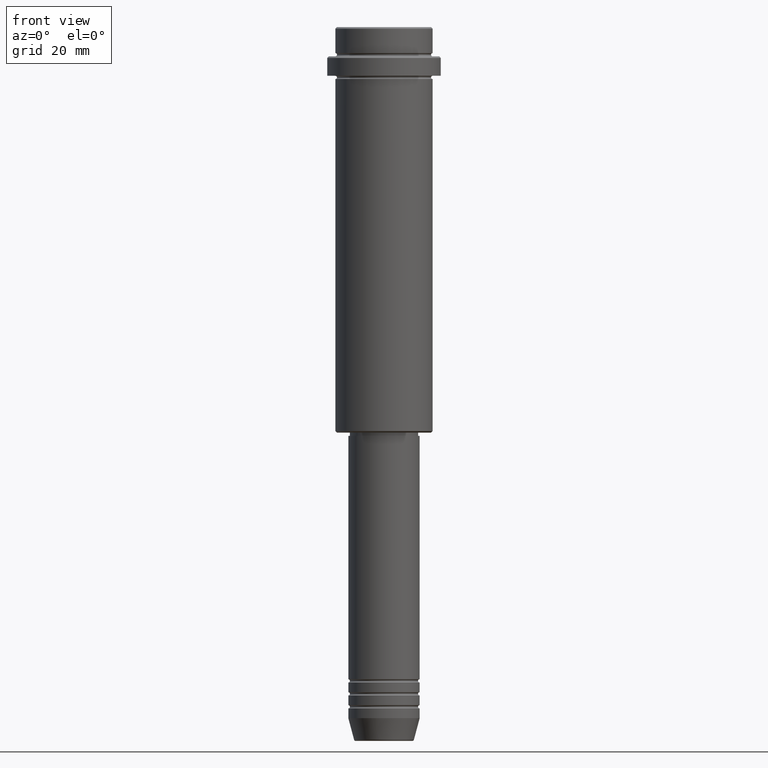
[diagram: clean part render]
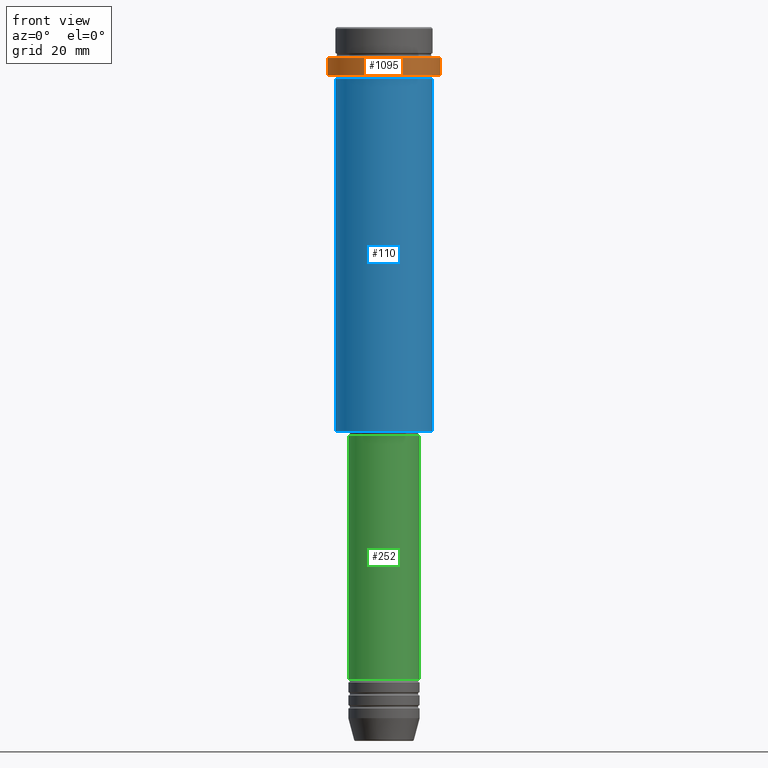
[diagram: same view with three faces highlighted in distinct colors, each labeled with its STEP entity id]
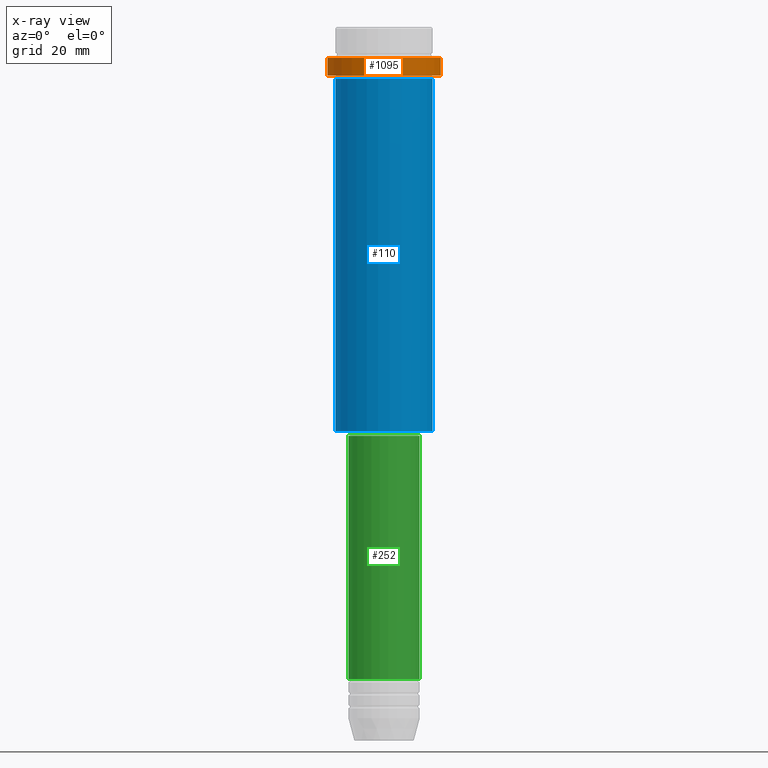
[diagram: x-ray of the same camera — body ghosted, the three highlighted faces saturated]
A machine part, front view with three faces highlighted in distinct colors.
The next image is the same camera in x-ray (body ghosted, the three faces saturated) — at least one of them is partly hidden behind the body in this view.
Their STEP definitions:

[orange] entity #1095 — the highlighted cylindrical surface (partial cylindrical patch) has radius 17.5 mm, axis along (-0, -0, 1).
#15 = VECTOR ( 'NONE', #1287, 1000.000000000000000 ) ;
#24 = EDGE_CURVE ( 'NONE', #662, #184, #1008, .T. ) ;
#44 = CARTESIAN_POINT ( 'NONE',  ( 17.50000000000000000, 0.000000000000000000, 0.000000000000000000 ) ) ;
#74 = CARTESIAN_POINT ( 'NONE',  ( 17.50000000000000000, 0.000000000000000000, -9.500000000000028422 ) ) ;
#97 = VERTEX_POINT ( 'NONE', #1066 ) ;
#157 = ORIENTED_EDGE ( 'NONE', *, *, #24, .T. ) ;
#178 = DIRECTION ( 'NONE',  ( 1.000000000000000000, 0.000000000000000000, 0.000000000000000000 ) ) ;
#184 = VERTEX_POINT ( 'NONE', #264 ) ;
#208 = CARTESIAN_POINT ( 'NONE',  ( 0.000000000000000000, 0.000000000000000000, -9.500000000000028422 ) ) ;
#232 = LINE ( 'NONE', #44, #461 ) ;
#264 = CARTESIAN_POINT ( 'NONE',  ( -17.50000000000000000, 2.143131898507868248E-15, -9.500000000000028422 ) ) ;
#283 = ORIENTED_EDGE ( 'NONE', *, *, #715, .T. ) ;
#365 = EDGE_CURVE ( 'NONE', #944, #184, #657, .T. ) ;
#424 = DIRECTION ( 'NONE',  ( -0.000000000000000000, -0.000000000000000000, 1.000000000000000000 ) ) ;
#461 = VECTOR ( 'NONE', #690, 1000.000000000000000 ) ;
#514 = CARTESIAN_POINT ( 'NONE',  ( -17.50000000000000000, 2.143131898507868248E-15, -15.00000000000000178 ) ) ;
#521 = CARTESIAN_POINT ( 'NONE',  ( -17.50000000000000000, 2.143131898507868248E-15, 0.000000000000000000 ) ) ;
#550 = DIRECTION ( 'NONE',  ( 0.000000000000000000, 0.000000000000000000, -1.000000000000000000 ) ) ;
#616 = ORIENTED_EDGE ( 'NONE', *, *, #875, .T. ) ;
#657 = LINE ( 'NONE', #521, #15 ) ;
#662 = VERTEX_POINT ( 'NONE', #74 ) ;
#690 = DIRECTION ( 'NONE',  ( -0.000000000000000000, -0.000000000000000000, 1.000000000000000000 ) ) ;
#696 = EDGE_LOOP ( 'NONE', ( #1167, #283, #616, #157 ) ) ;
#715 = EDGE_CURVE ( 'NONE', #944, #97, #903, .T. ) ;
#725 = FACE_OUTER_BOUND ( 'NONE', #696, .T. ) ;
#742 = CARTESIAN_POINT ( 'NONE',  ( 0.000000000000000000, 0.000000000000000000, 0.000000000000000000 ) ) ;
#834 = DIRECTION ( 'NONE',  ( 1.000000000000000000, 0.000000000000000000, 0.000000000000000000 ) ) ;
#875 = EDGE_CURVE ( 'NONE', #97, #662, #232, .T. ) ;
#903 = CIRCLE ( 'NONE', #1239, 17.50000000000000000 ) ;
#944 = VERTEX_POINT ( 'NONE', #514 ) ;
#1008 = CIRCLE ( 'NONE', #1408, 17.50000000000000000 ) ;
#1066 = CARTESIAN_POINT ( 'NONE',  ( 17.50000000000000000, 0.000000000000000000, -15.00000000000000178 ) ) ;
#1078 = DIRECTION ( 'NONE',  ( -0.000000000000000000, -0.000000000000000000, 1.000000000000000000 ) ) ;
#1095 = ADVANCED_FACE ( 'NONE', ( #725 ), #1272, .T. ) ;
#1167 = ORIENTED_EDGE ( 'NONE', *, *, #365, .F. ) ;
#1239 = AXIS2_PLACEMENT_3D ( 'NONE', #1399, #424, #834 ) ;
#1240 = AXIS2_PLACEMENT_3D ( 'NONE', #742, #1078, #178 ) ;
#1272 = CYLINDRICAL_SURFACE ( 'NONE', #1240, 17.50000000000000000 ) ;
#1287 = DIRECTION ( 'NONE',  ( -0.000000000000000000, -0.000000000000000000, 1.000000000000000000 ) ) ;
#1399 = CARTESIAN_POINT ( 'NONE',  ( 0.000000000000000000, 0.000000000000000000, -15.00000000000000178 ) ) ;
#1408 = AXIS2_PLACEMENT_3D ( 'NONE', #208, #550, #1416 ) ;
#1416 = DIRECTION ( 'NONE',  ( 1.000000000000000000, 0.000000000000000000, 0.000000000000000000 ) ) ;

[blue] entity #110 — the highlighted cylindrical surface (partial cylindrical patch) has radius 15 mm, axis along (-0, -0, 1).
#69 = EDGE_CURVE ( 'NONE', #987, #939, #1098, .T. ) ;
#110 = ADVANCED_FACE ( 'NONE', ( #701 ), #1107, .T. ) ;
#112 = CARTESIAN_POINT ( 'NONE',  ( 15.00000000000000000, 0.000000000000000000, 0.000000000000000000 ) ) ;
#126 = DIRECTION ( 'NONE',  ( -0.000000000000000000, -0.000000000000000000, 1.000000000000000000 ) ) ;
#127 = CARTESIAN_POINT ( 'NONE',  ( 0.000000000000000000, 0.000000000000000000, -16.00000000000000000 ) ) ;
#188 = VERTEX_POINT ( 'NONE', #401 ) ;
#195 = AXIS2_PLACEMENT_3D ( 'NONE', #564, #1220, #1108 ) ;
#212 = ORIENTED_EDGE ( 'NONE', *, *, #1404, .F. ) ;
#226 = CARTESIAN_POINT ( 'NONE',  ( 0.000000000000000000, 0.000000000000000000, 0.000000000000000000 ) ) ;
#233 = LINE ( 'NONE', #112, #1163 ) ;
#247 = CARTESIAN_POINT ( 'NONE',  ( 15.00000000000000178, 0.000000000000000000, -16.00000000000000000 ) ) ;
#248 = DIRECTION ( 'NONE',  ( -0.000000000000000000, -0.000000000000000000, 1.000000000000000000 ) ) ;
#270 = EDGE_CURVE ( 'NONE', #939, #836, #233, .T. ) ;
#294 = ORIENTED_EDGE ( 'NONE', *, *, #69, .T. ) ;
#323 = LINE ( 'NONE', #558, #1390 ) ;
#359 = ORIENTED_EDGE ( 'NONE', *, *, #270, .T. ) ;
#401 = CARTESIAN_POINT ( 'NONE',  ( -15.00000000000000355, 1.836970198721029983E-15, -16.00000000000000000 ) ) ;
#558 = CARTESIAN_POINT ( 'NONE',  ( -15.00000000000000000, 1.836970198721029589E-15, 0.000000000000000000 ) ) ;
#564 = CARTESIAN_POINT ( 'NONE',  ( 0.000000000000000000, 0.000000000000000000, -124.4999999999999574 ) ) ;
#590 = DIRECTION ( 'NONE',  ( 1.000000000000000000, 0.000000000000000000, 0.000000000000000000 ) ) ;
#681 = DIRECTION ( 'NONE',  ( -0.000000000000000000, -0.000000000000000000, 1.000000000000000000 ) ) ;
#701 = FACE_OUTER_BOUND ( 'NONE', #1065, .T. ) ;
#836 = VERTEX_POINT ( 'NONE', #247 ) ;
#929 = CARTESIAN_POINT ( 'NONE',  ( -15.00000000000000000, 1.836970198721029589E-15, -124.4999999999999574 ) ) ;
#939 = VERTEX_POINT ( 'NONE', #1366 ) ;
#987 = VERTEX_POINT ( 'NONE', #929 ) ;
#997 = AXIS2_PLACEMENT_3D ( 'NONE', #127, #248, #1328 ) ;
#1009 = AXIS2_PLACEMENT_3D ( 'NONE', #226, #1336, #590 ) ;
#1037 = CIRCLE ( 'NONE', #997, 15.00000000000000178 ) ;
#1065 = EDGE_LOOP ( 'NONE', ( #1097, #294, #359, #212 ) ) ;
#1097 = ORIENTED_EDGE ( 'NONE', *, *, #1309, .F. ) ;
#1098 = CIRCLE ( 'NONE', #195, 15.00000000000000000 ) ;
#1107 = CYLINDRICAL_SURFACE ( 'NONE', #1009, 15.00000000000000000 ) ;
#1108 = DIRECTION ( 'NONE',  ( -1.000000000000000000, 0.000000000000000000, 0.000000000000000000 ) ) ;
#1163 = VECTOR ( 'NONE', #126, 1000.000000000000000 ) ;
#1220 = DIRECTION ( 'NONE',  ( -0.000000000000000000, -0.000000000000000000, 1.000000000000000000 ) ) ;
#1309 = EDGE_CURVE ( 'NONE', #987, #188, #323, .T. ) ;
#1328 = DIRECTION ( 'NONE',  ( 1.000000000000000000, 0.000000000000000000, 0.000000000000000000 ) ) ;
#1336 = DIRECTION ( 'NONE',  ( -0.000000000000000000, -0.000000000000000000, 1.000000000000000000 ) ) ;
#1366 = CARTESIAN_POINT ( 'NONE',  ( 15.00000000000000000, 0.000000000000000000, -124.4999999999999574 ) ) ;
#1390 = VECTOR ( 'NONE', #681, 1000.000000000000000 ) ;
#1404 = EDGE_CURVE ( 'NONE', #188, #836, #1037, .T. ) ;

[green] entity #252 — the highlighted cylindrical surface (edge-blend (fillet) strip) has radius 11 mm, axis along (-0, -0, 1).
#26 = CARTESIAN_POINT ( 'NONE',  ( 11.00000000000000000, 0.000000000000000000, -200.9999999999999147 ) ) ;
#55 = CIRCLE ( 'NONE', #992, 11.00000000000000000 ) ;
#61 = CARTESIAN_POINT ( 'NONE',  ( 0.000000000000000000, 0.000000000000000000, -200.9999999999999147 ) ) ;
#119 = VECTOR ( 'NONE', #1144, 1000.000000000000000 ) ;
#163 = DIRECTION ( 'NONE',  ( -0.000000000000000000, -0.000000000000000000, 1.000000000000000000 ) ) ;
#164 = AXIS2_PLACEMENT_3D ( 'NONE', #464, #1003, #329 ) ;
#224 = ORIENTED_EDGE ( 'NONE', *, *, #460, .F. ) ;
#244 = FACE_OUTER_BOUND ( 'NONE', #1299, .T. ) ;
#252 = ADVANCED_FACE ( 'NONE', ( #244 ), #574, .T. ) ;
#257 = CARTESIAN_POINT ( 'NONE',  ( -11.00000000000000000, 1.347111479062088405E-15, -200.9999999999999147 ) ) ;
#258 = EDGE_CURVE ( 'NONE', #1229, #380, #529, .T. ) ;
#291 = CARTESIAN_POINT ( 'NONE',  ( -11.00000000000000000, 1.347111479062088405E-15, 0.000000000000000000 ) ) ;
#316 = ORIENTED_EDGE ( 'NONE', *, *, #543, .T. ) ;
#329 = DIRECTION ( 'NONE',  ( 1.000000000000000000, 0.000000000000000000, 0.000000000000000000 ) ) ;
#380 = VERTEX_POINT ( 'NONE', #1380 ) ;
#398 = DIRECTION ( 'NONE',  ( 1.000000000000000000, 0.000000000000000000, 0.000000000000000000 ) ) ;
#434 = VECTOR ( 'NONE', #163, 1000.000000000000000 ) ;
#460 = EDGE_CURVE ( 'NONE', #542, #1229, #1048, .T. ) ;
#464 = CARTESIAN_POINT ( 'NONE',  ( 0.000000000000000000, 0.000000000000000000, 0.000000000000000000 ) ) ;
#529 = CIRCLE ( 'NONE', #1194, 10.99999999999999822 ) ;
#542 = VERTEX_POINT ( 'NONE', #257 ) ;
#543 = EDGE_CURVE ( 'NONE', #989, #380, #958, .T. ) ;
#574 = CYLINDRICAL_SURFACE ( 'NONE', #164, 11.00000000000000000 ) ;
#660 = EDGE_CURVE ( 'NONE', #542, #989, #55, .T. ) ;
#712 = CARTESIAN_POINT ( 'NONE',  ( 11.00000000000000000, 0.000000000000000000, 0.000000000000000000 ) ) ;
#819 = ORIENTED_EDGE ( 'NONE', *, *, #660, .T. ) ;
#914 = CARTESIAN_POINT ( 'NONE',  ( 0.000000000000000000, 0.000000000000000000, -126.0000000000000000 ) ) ;
#958 = LINE ( 'NONE', #712, #119 ) ;
#989 = VERTEX_POINT ( 'NONE', #26 ) ;
#992 = AXIS2_PLACEMENT_3D ( 'NONE', #61, #1073, #398 ) ;
#1003 = DIRECTION ( 'NONE',  ( -0.000000000000000000, -0.000000000000000000, 1.000000000000000000 ) ) ;
#1019 = DIRECTION ( 'NONE',  ( -0.000000000000000000, -0.000000000000000000, 1.000000000000000000 ) ) ;
#1048 = LINE ( 'NONE', #291, #434 ) ;
#1073 = DIRECTION ( 'NONE',  ( -0.000000000000000000, -0.000000000000000000, 1.000000000000000000 ) ) ;
#1096 = CARTESIAN_POINT ( 'NONE',  ( -10.99999999999999822, 1.347111479062088207E-15, -126.0000000000000000 ) ) ;
#1144 = DIRECTION ( 'NONE',  ( -0.000000000000000000, -0.000000000000000000, 1.000000000000000000 ) ) ;
#1194 = AXIS2_PLACEMENT_3D ( 'NONE', #914, #1019, #1232 ) ;
#1229 = VERTEX_POINT ( 'NONE', #1096 ) ;
#1232 = DIRECTION ( 'NONE',  ( 1.000000000000000000, 0.000000000000000000, 0.000000000000000000 ) ) ;
#1253 = ORIENTED_EDGE ( 'NONE', *, *, #258, .F. ) ;
#1299 = EDGE_LOOP ( 'NONE', ( #224, #819, #316, #1253 ) ) ;
#1380 = CARTESIAN_POINT ( 'NONE',  ( 10.99999999999999822, 0.000000000000000000, -126.0000000000000000 ) ) ;